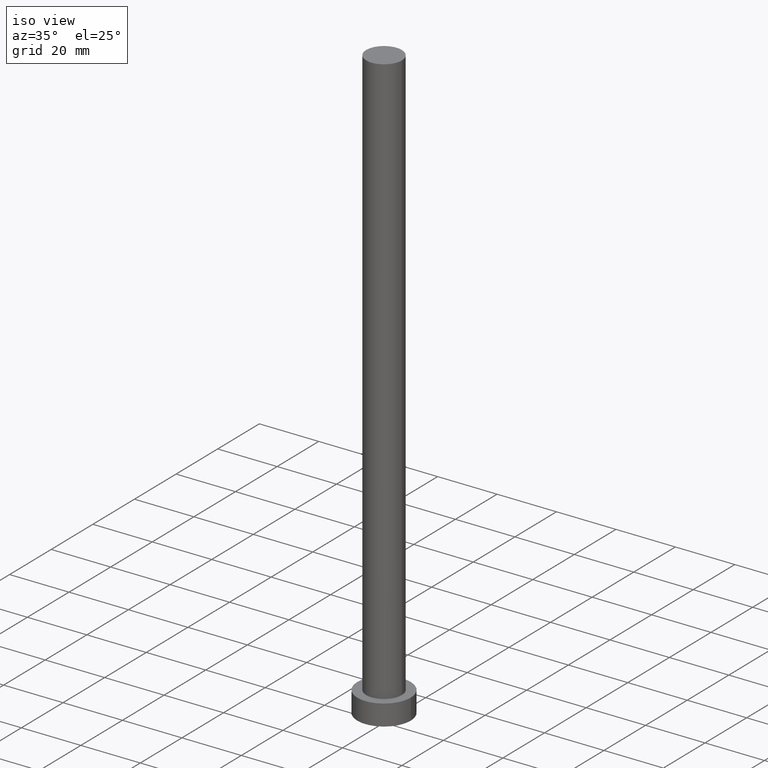
[diagram: clean part render]
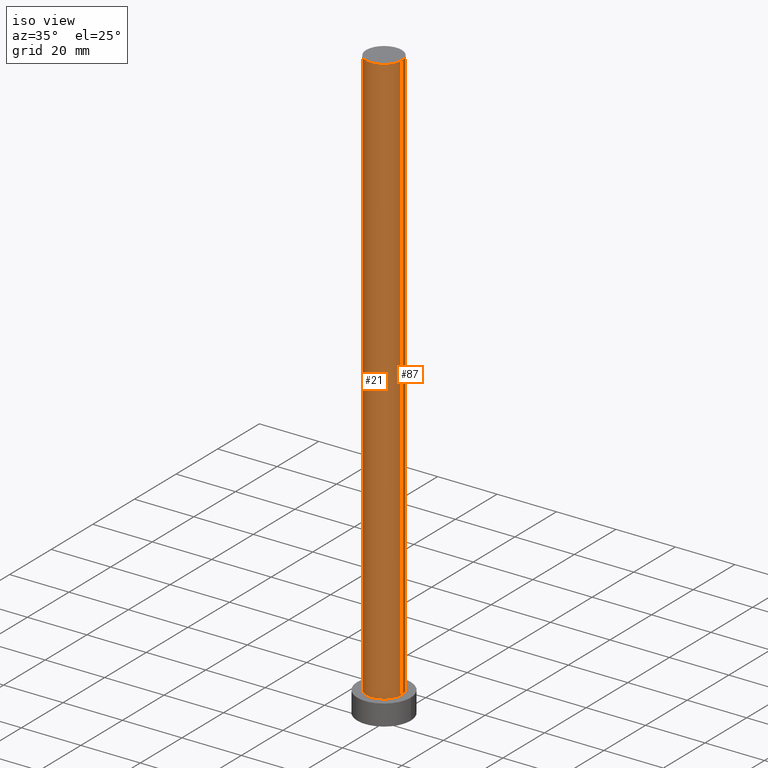
[diagram: same view with one multi-face feature highlighted, each face labeled with its STEP entity id]
A machine part, iso view. The highlighted faces form ONE feature: a constant-radius fillet chain: 2 tangent blend faces with common blend radius 6 mm. The faces share edges in the B-rep.
Their STEP definitions:
[1] entity #21 (Cylinder):
#2 = EDGE_CURVE ( 'NONE', #11, #214, #76, .T. ) ;
#4 = VECTOR ( 'NONE', #139, 1000.000000000000000 ) ;
#6 = DIRECTION ( 'NONE',  ( -0.000000000000000000, -0.000000000000000000, -1.000000000000000000 ) ) ;
#10 = CARTESIAN_POINT ( 'NONE',  ( -6.000000000000000888, 0.000000000000000000, 7.000000000000000000 ) ) ;
#11 = VERTEX_POINT ( 'NONE', #10 ) ;
#17 = LINE ( 'NONE', #109, #4 ) ;
#21 = ADVANCED_FACE ( 'NONE', ( #136 ), #70, .T. ) ;
#37 = LINE ( 'NONE', #152, #255 ) ;
#47 = CARTESIAN_POINT ( 'NONE',  ( 0.000000000000000000, 0.000000000000000000, 7.000000000000000000 ) ) ;
#48 = AXIS2_PLACEMENT_3D ( 'NONE', #47, #173, #72 ) ;
#59 = DIRECTION ( 'NONE',  ( 0.000000000000000000, 0.000000000000000000, 1.000000000000000000 ) ) ;
#70 = CYLINDRICAL_SURFACE ( 'NONE', #253, 6.000000000000000888 ) ;
#72 = DIRECTION ( 'NONE',  ( 1.000000000000000000, 0.000000000000000000, 0.000000000000000000 ) ) ;
#76 = CIRCLE ( 'NONE', #48, 6.000000000000000888 ) ;
#78 = ORIENTED_EDGE ( 'NONE', *, *, #144, .T. ) ;
#82 = CIRCLE ( 'NONE', #185, 6.000000000000000888 ) ;
#93 = CARTESIAN_POINT ( 'NONE',  ( -6.000000000000000888, 0.000000000000000000, 200.0000000000000000 ) ) ;
#102 = EDGE_CURVE ( 'NONE', #133, #214, #17, .T. ) ;
#109 = CARTESIAN_POINT ( 'NONE',  ( 6.000000000000000888, 7.347880794884120722E-16, 200.0000000000000000 ) ) ;
#124 = CARTESIAN_POINT ( 'NONE',  ( 0.000000000000000000, 0.000000000000000000, 200.0000000000000000 ) ) ;
#133 = VERTEX_POINT ( 'NONE', #251 ) ;
#135 = VERTEX_POINT ( 'NONE', #93 ) ;
#136 = FACE_OUTER_BOUND ( 'NONE', #151, .T. ) ;
#139 = DIRECTION ( 'NONE',  ( -0.000000000000000000, -0.000000000000000000, -1.000000000000000000 ) ) ;
#144 = EDGE_CURVE ( 'NONE', #135, #11, #37, .T. ) ;
#151 = EDGE_LOOP ( 'NONE', ( #178, #239, #78, #230 ) ) ;
#152 = CARTESIAN_POINT ( 'NONE',  ( -6.000000000000000888, 0.000000000000000000, 200.0000000000000000 ) ) ;
#164 = EDGE_CURVE ( 'NONE', #135, #133, #82, .T. ) ;
#173 = DIRECTION ( 'NONE',  ( 0.000000000000000000, 0.000000000000000000, 1.000000000000000000 ) ) ;
#178 = ORIENTED_EDGE ( 'NONE', *, *, #102, .F. ) ;
#185 = AXIS2_PLACEMENT_3D ( 'NONE', #227, #59, #215 ) ;
#197 = DIRECTION ( 'NONE',  ( -1.000000000000000000, 0.000000000000000000, 0.000000000000000000 ) ) ;
#214 = VERTEX_POINT ( 'NONE', #228 ) ;
#215 = DIRECTION ( 'NONE',  ( 1.000000000000000000, 0.000000000000000000, 0.000000000000000000 ) ) ;
#227 = CARTESIAN_POINT ( 'NONE',  ( 0.000000000000000000, 0.000000000000000000, 200.0000000000000000 ) ) ;
#228 = CARTESIAN_POINT ( 'NONE',  ( 6.000000000000000888, 7.347880794884120722E-16, 7.000000000000000000 ) ) ;
#230 = ORIENTED_EDGE ( 'NONE', *, *, #2, .T. ) ;
#239 = ORIENTED_EDGE ( 'NONE', *, *, #164, .F. ) ;
#245 = DIRECTION ( 'NONE',  ( -0.000000000000000000, -0.000000000000000000, -1.000000000000000000 ) ) ;
#251 = CARTESIAN_POINT ( 'NONE',  ( 6.000000000000000888, 7.347880794884120722E-16, 200.0000000000000000 ) ) ;
#253 = AXIS2_PLACEMENT_3D ( 'NONE', #124, #6, #197 ) ;
#255 = VECTOR ( 'NONE', #245, 1000.000000000000000 ) ;
[2] entity #87 (Cylinder):
#1 = ORIENTED_EDGE ( 'NONE', *, *, #144, .F. ) ;
#4 = VECTOR ( 'NONE', #139, 1000.000000000000000 ) ;
#9 = CYLINDRICAL_SURFACE ( 'NONE', #121, 6.000000000000000888 ) ;
#10 = CARTESIAN_POINT ( 'NONE',  ( -6.000000000000000888, 0.000000000000000000, 7.000000000000000000 ) ) ;
#11 = VERTEX_POINT ( 'NONE', #10 ) ;
#14 = EDGE_CURVE ( 'NONE', #214, #11, #44, .T. ) ;
#17 = LINE ( 'NONE', #109, #4 ) ;
#29 = DIRECTION ( 'NONE',  ( -0.000000000000000000, -0.000000000000000000, -1.000000000000000000 ) ) ;
#36 = ORIENTED_EDGE ( 'NONE', *, *, #14, .T. ) ;
#37 = LINE ( 'NONE', #152, #255 ) ;
#44 = CIRCLE ( 'NONE', #216, 6.000000000000000888 ) ;
#46 = FACE_OUTER_BOUND ( 'NONE', #100, .T. ) ;
#80 = DIRECTION ( 'NONE',  ( 1.000000000000000000, 0.000000000000000000, 0.000000000000000000 ) ) ;
#87 = ADVANCED_FACE ( 'NONE', ( #46 ), #9, .T. ) ;
#93 = CARTESIAN_POINT ( 'NONE',  ( -6.000000000000000888, 0.000000000000000000, 200.0000000000000000 ) ) ;
#98 = EDGE_CURVE ( 'NONE', #133, #135, #235, .T. ) ;
#100 = EDGE_LOOP ( 'NONE', ( #176, #130, #36, #1 ) ) ;
#102 = EDGE_CURVE ( 'NONE', #133, #214, #17, .T. ) ;
#103 = DIRECTION ( 'NONE',  ( 0.000000000000000000, 0.000000000000000000, 1.000000000000000000 ) ) ;
#109 = CARTESIAN_POINT ( 'NONE',  ( 6.000000000000000888, 7.347880794884120722E-16, 200.0000000000000000 ) ) ;
#113 = AXIS2_PLACEMENT_3D ( 'NONE', #145, #229, #80 ) ;
#121 = AXIS2_PLACEMENT_3D ( 'NONE', #194, #29, #174 ) ;
#130 = ORIENTED_EDGE ( 'NONE', *, *, #102, .T. ) ;
#133 = VERTEX_POINT ( 'NONE', #251 ) ;
#135 = VERTEX_POINT ( 'NONE', #93 ) ;
#139 = DIRECTION ( 'NONE',  ( -0.000000000000000000, -0.000000000000000000, -1.000000000000000000 ) ) ;
#144 = EDGE_CURVE ( 'NONE', #135, #11, #37, .T. ) ;
#145 = CARTESIAN_POINT ( 'NONE',  ( 0.000000000000000000, 0.000000000000000000, 200.0000000000000000 ) ) ;
#152 = CARTESIAN_POINT ( 'NONE',  ( -6.000000000000000888, 0.000000000000000000, 200.0000000000000000 ) ) ;
#174 = DIRECTION ( 'NONE',  ( -1.000000000000000000, 0.000000000000000000, 0.000000000000000000 ) ) ;
#176 = ORIENTED_EDGE ( 'NONE', *, *, #98, .F. ) ;
#194 = CARTESIAN_POINT ( 'NONE',  ( 0.000000000000000000, 0.000000000000000000, 200.0000000000000000 ) ) ;
#195 = CARTESIAN_POINT ( 'NONE',  ( 0.000000000000000000, 0.000000000000000000, 7.000000000000000000 ) ) ;
#214 = VERTEX_POINT ( 'NONE', #228 ) ;
#216 = AXIS2_PLACEMENT_3D ( 'NONE', #195, #103, #218 ) ;
#218 = DIRECTION ( 'NONE',  ( 1.000000000000000000, 0.000000000000000000, 0.000000000000000000 ) ) ;
#228 = CARTESIAN_POINT ( 'NONE',  ( 6.000000000000000888, 7.347880794884120722E-16, 7.000000000000000000 ) ) ;
#229 = DIRECTION ( 'NONE',  ( 0.000000000000000000, 0.000000000000000000, 1.000000000000000000 ) ) ;
#235 = CIRCLE ( 'NONE', #113, 6.000000000000000888 ) ;
#245 = DIRECTION ( 'NONE',  ( -0.000000000000000000, -0.000000000000000000, -1.000000000000000000 ) ) ;
#251 = CARTESIAN_POINT ( 'NONE',  ( 6.000000000000000888, 7.347880794884120722E-16, 200.0000000000000000 ) ) ;
#255 = VECTOR ( 'NONE', #245, 1000.000000000000000 ) ;